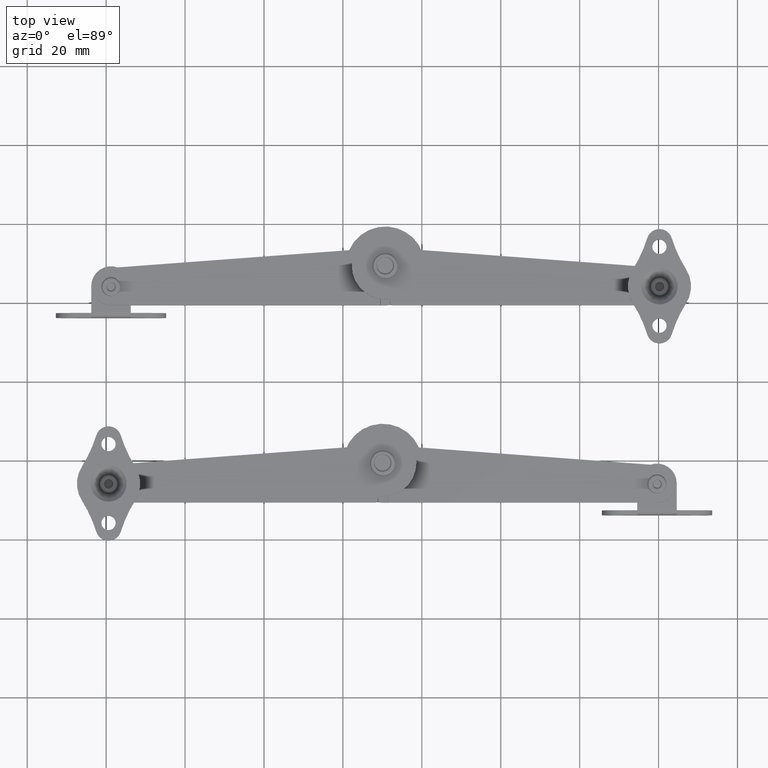
[diagram: clean part render]
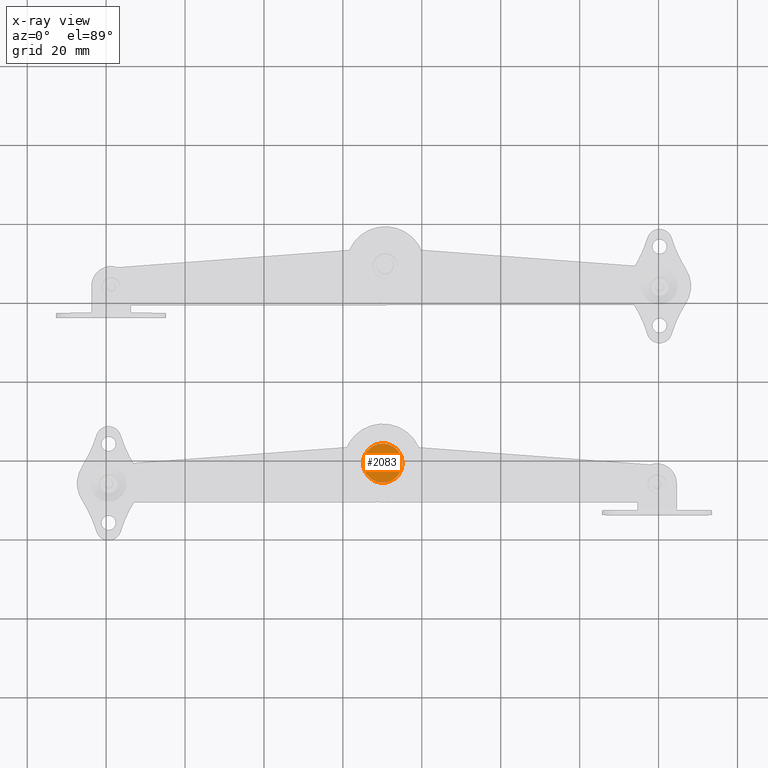
[diagram: x-ray — body ghosted, one internal face saturated and labeled with its STEP entity id]
A machine part, top view, then the same camera in x-ray: the body is ghosted and one INTERNAL B-rep face — a face not visible from any outside direction — is saturated and labeled: STEP entity #2083.
In plain terms, the highlighted planar face has unit normal (-0, -0, 1).
Its self-contained STEP definition (entity closure, byte-faithful):
#235=FACE_BOUND('',#608,.T.);
#309=PLANE('',#2323);
#418=FACE_OUTER_BOUND('',#607,.T.);
#607=EDGE_LOOP('',(#1767));
#608=EDGE_LOOP('',(#1768));
#790=CIRCLE('',#2322,1.25);
#791=CIRCLE('',#2324,5.00000000000001);
#1158=VERTEX_POINT('',#3524);
#1159=VERTEX_POINT('',#3527);
#1380=EDGE_CURVE('',#1158,#1158,#790,.T.);
#1381=EDGE_CURVE('',#1159,#1159,#791,.T.);
#1767=ORIENTED_EDGE('',*,*,#1381,.F.);
#1768=ORIENTED_EDGE('',*,*,#1380,.T.);
#2083=ADVANCED_FACE('',(#418,#235),#309,.T.);
#2322=AXIS2_PLACEMENT_3D('',#3525,#2863,#2864);
#2323=AXIS2_PLACEMENT_3D('',#3526,#2865,#2866);
#2324=AXIS2_PLACEMENT_3D('',#3528,#2867,#2868);
#2863=DIRECTION('center_axis',(-8.57252759403147E-16,1.,0.));
#2864=DIRECTION('ref_axis',(-1.,0.,0.));
#2865=DIRECTION('center_axis',(8.57252759403147E-16,-1.,0.));
#2866=DIRECTION('ref_axis',(0.,0.,-1.));
#2867=DIRECTION('center_axis',(-8.57252759403147E-16,1.,0.));
#2868=DIRECTION('ref_axis',(-1.,-1.13338950613044E-15,0.));
#3524=CARTESIAN_POINT('',(1.25,-2.2,-1.53080849893419E-16));
#3525=CARTESIAN_POINT('Origin',(1.88595607068692E-15,-2.2,0.));
#3526=CARTESIAN_POINT('Origin',(-2.5,-2.2,0.));
#3527=CARTESIAN_POINT('',(-5.,-2.2,0.));
#3528=CARTESIAN_POINT('Origin',(1.88595607068692E-15,-2.2,0.));